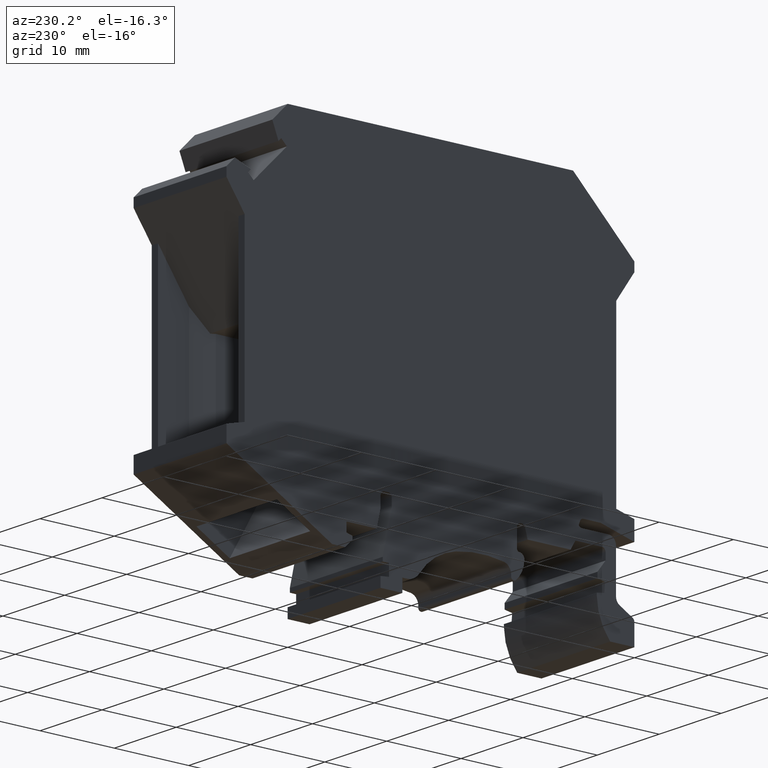
[diagram: clean part render]
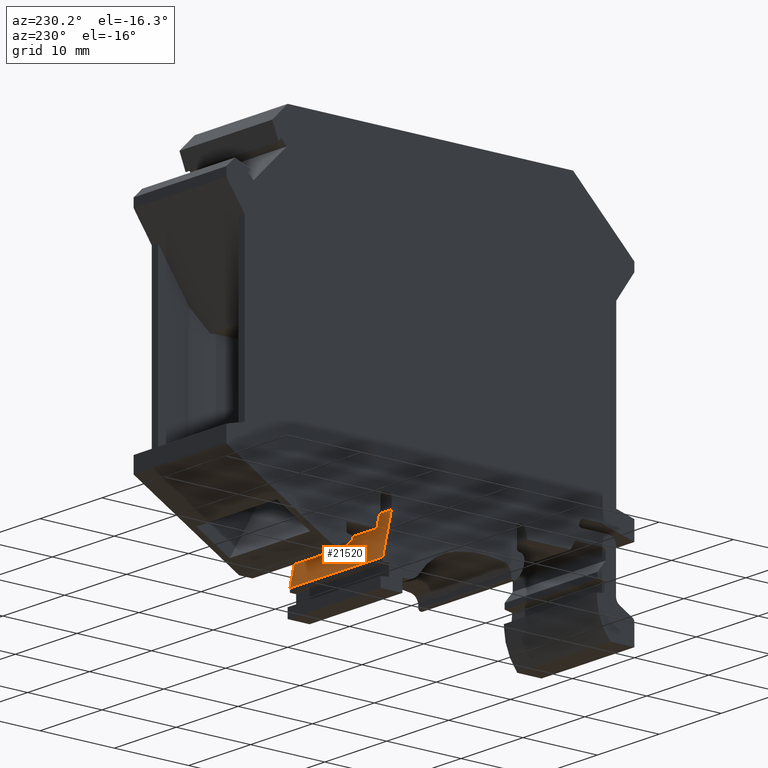
[diagram: same view with one face highlighted and labeled with its STEP entity id]
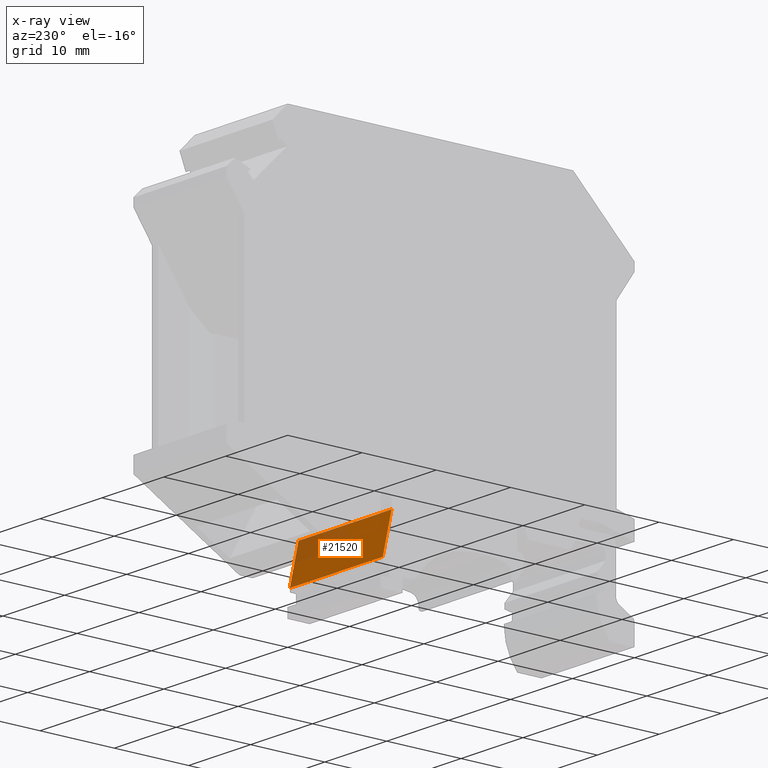
[diagram: x-ray of the same camera — body ghosted, the highlighted face saturated]
A machine part, auxiliary view. The second image highlights one B-rep face of the part: STEP entity #21520.
The next image is the same camera in x-ray: the body ghosted, the highlighted face saturated — about 28% of this face is hidden behind the body in this view.
In plain terms, the highlighted planar face has unit normal (-0, -0.9763, -0.2164).
Its self-contained STEP definition (entity closure, byte-faithful):
#2880=CARTESIAN_POINT('',(-66.8641578666447,265.116084619122,7.4));
#2890=VERTEX_POINT('',#2880);
#2920=CARTESIAN_POINT('',(-46.678402320604,174.064025424752,7.4));
#2930=DIRECTION('',(0.216439613938103,-0.976296007119933,0.));
#2940=VECTOR('',#2930,1.);
#2950=LINE('',#2920,#2940);
#2960=CARTESIAN_POINT('',(-65.6865658524048,259.804310306645,7.4));
#2970=VERTEX_POINT('',#2960);
#2980=EDGE_CURVE('',#2890,#2970,#2950,.T.);
#21090=CARTESIAN_POINT('',(-66.8641578666447,265.116084619122,-7.6));
#21100=VERTEX_POINT('',#21090);
#21130=CARTESIAN_POINT('',(-66.8641578666447,265.116084619121,7.4));
#21140=DIRECTION('',(0.,0.,-1.));
#21150=VECTOR('',#21140,1.);
#21160=LINE('',#21130,#21150);
#21170=EDGE_CURVE('',#2890,#21100,#21160,.T.);
#21290=CARTESIAN_POINT('',(-66.8641578666447,265.116084619121,7.4));
#21300=DIRECTION('',(-0.976296007119933,-0.216439613938103,-0.));
#21310=DIRECTION('',(-0.216439613938103,0.976296007119933,0.));
#21320=AXIS2_PLACEMENT_3D('',#21290,#21300,#21310);
#21330=PLANE('',#21320);
#21340=ORIENTED_EDGE('',*,*,#2980,.T.);
#21350=ORIENTED_EDGE('',*,*,#21170,.F.);
#21360=CARTESIAN_POINT('',(-46.678402320604,174.064025424752,-7.6));
#21370=DIRECTION('',(0.216439613938103,-0.976296007119933,0.));
#21380=VECTOR('',#21370,1.);
#21390=LINE('',#21360,#21380);
#21400=CARTESIAN_POINT('',(-65.6865658524048,259.804310306645,-7.6));
#21410=VERTEX_POINT('',#21400);
#21420=EDGE_CURVE('',#21100,#21410,#21390,.T.);
#21430=ORIENTED_EDGE('',*,*,#21420,.F.);
#21440=CARTESIAN_POINT('',(-65.6865658524048,259.804310306645,
-0.0999999999999996));
#21450=DIRECTION('',(0.,0.,-1.));
#21460=VECTOR('',#21450,1.);
#21470=LINE('',#21440,#21460);
#21480=EDGE_CURVE('',#2970,#21410,#21470,.T.);
#21490=ORIENTED_EDGE('',*,*,#21480,.T.);
#21500=EDGE_LOOP('',(#21490,#21430,#21350,#21340));
#21510=FACE_OUTER_BOUND('',#21500,.T.);
#21520=ADVANCED_FACE('',(#21510),#21330,.F.);